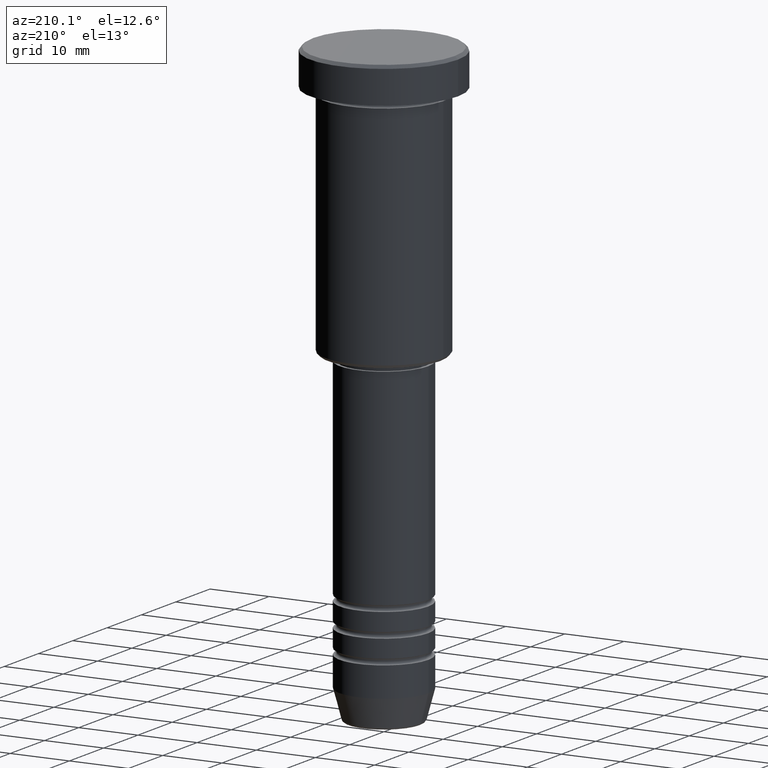
[diagram: clean part render]
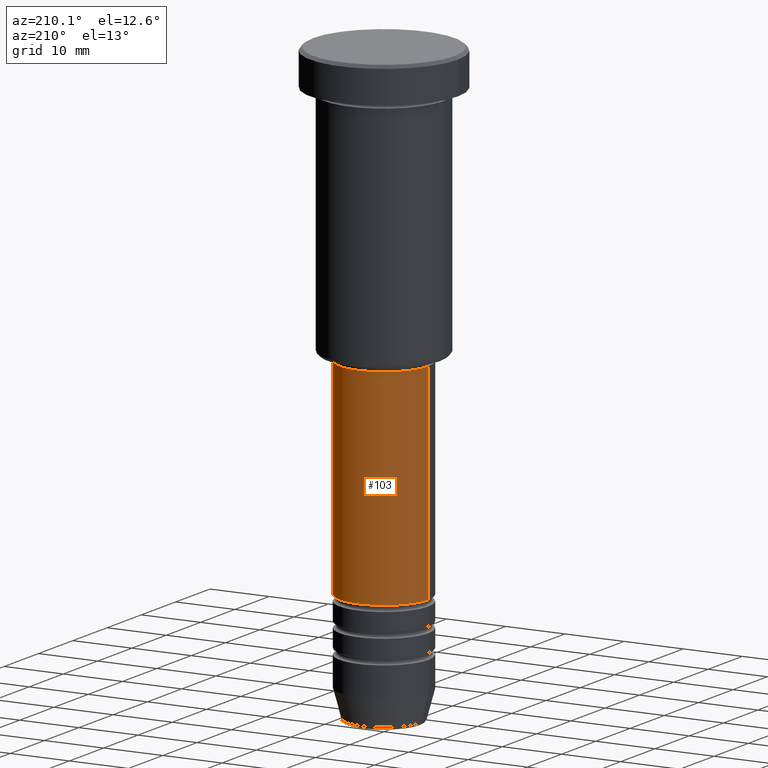
[diagram: same view with one face highlighted and labeled with its STEP entity id]
A machine part, auxiliary view. The second image highlights one B-rep face of the part: STEP entity #103.
In plain terms, the highlighted cylindrical surface (partial cylindrical patch) has radius 7.5 mm, axis along (-0, -0, 1).
Its self-contained STEP definition (entity closure, byte-faithful):
#19 = CARTESIAN_POINT ( 'NONE',  ( 7.500000000000000000, 0.000000000000000000, 0.000000000000000000 ) ) ;
#41 = DIRECTION ( 'NONE',  ( 1.000000000000000000, 0.000000000000000000, 0.000000000000000000 ) ) ;
#62 = ORIENTED_EDGE ( 'NONE', *, *, #490, .T. ) ;
#73 = ORIENTED_EDGE ( 'NONE', *, *, #237, .T. ) ;
#102 = VECTOR ( 'NONE', #1027, 1000.000000000000000 ) ;
#103 = ADVANCED_FACE ( 'NONE', ( #597 ), #229, .T. ) ;
#111 = DIRECTION ( 'NONE',  ( 1.000000000000000000, 0.000000000000000000, 0.000000000000000000 ) ) ;
#186 = EDGE_LOOP ( 'NONE', ( #62, #73, #764, #890 ) ) ;
#192 = EDGE_CURVE ( 'NONE', #1046, #510, #491, .T. ) ;
#227 = VECTOR ( 'NONE', #463, 1000.000000000000000 ) ;
#229 = CYLINDRICAL_SURFACE ( 'NONE', #943, 7.500000000000000000 ) ;
#237 = EDGE_CURVE ( 'NONE', #683, #510, #1130, .T. ) ;
#250 = AXIS2_PLACEMENT_3D ( 'NONE', #873, #414, #41 ) ;
#325 = DIRECTION ( 'NONE',  ( -0.000000000000000000, -0.000000000000000000, 1.000000000000000000 ) ) ;
#414 = DIRECTION ( 'NONE',  ( -0.000000000000000000, -0.000000000000000000, 1.000000000000000000 ) ) ;
#463 = DIRECTION ( 'NONE',  ( -0.000000000000000000, -0.000000000000000000, 1.000000000000000000 ) ) ;
#490 = EDGE_CURVE ( 'NONE', #775, #683, #567, .T. ) ;
#491 = CIRCLE ( 'NONE', #250, 7.500000000000000000 ) ;
#510 = VERTEX_POINT ( 'NONE', #1018 ) ;
#516 = AXIS2_PLACEMENT_3D ( 'NONE', #1028, #1111, #571 ) ;
#534 = EDGE_CURVE ( 'NONE', #775, #1046, #841, .T. ) ;
#567 = CIRCLE ( 'NONE', #516, 7.500000000000000888 ) ;
#571 = DIRECTION ( 'NONE',  ( 1.000000000000000000, 0.000000000000000000, 0.000000000000000000 ) ) ;
#597 = FACE_OUTER_BOUND ( 'NONE', #186, .T. ) ;
#683 = VERTEX_POINT ( 'NONE', #987 ) ;
#699 = CARTESIAN_POINT ( 'NONE',  ( -7.500000000000000000, 9.184850993605147944E-16, 0.000000000000000000 ) ) ;
#764 = ORIENTED_EDGE ( 'NONE', *, *, #192, .F. ) ;
#772 = CARTESIAN_POINT ( 'NONE',  ( 0.000000000000000000, 0.000000000000000000, 0.000000000000000000 ) ) ;
#775 = VERTEX_POINT ( 'NONE', #1125 ) ;
#841 = LINE ( 'NONE', #19, #227 ) ;
#873 = CARTESIAN_POINT ( 'NONE',  ( 0.000000000000000000, 0.000000000000000000, -46.99999999999997868 ) ) ;
#890 = ORIENTED_EDGE ( 'NONE', *, *, #534, .F. ) ;
#902 = CARTESIAN_POINT ( 'NONE',  ( 7.500000000000000000, 0.000000000000000000, -46.99999999999997868 ) ) ;
#943 = AXIS2_PLACEMENT_3D ( 'NONE', #772, #325, #111 ) ;
#987 = CARTESIAN_POINT ( 'NONE',  ( -7.500000000000001776, 9.184850993605149917E-16, -81.99999999999988631 ) ) ;
#1018 = CARTESIAN_POINT ( 'NONE',  ( -7.500000000000000000, 9.184850993605147944E-16, -46.99999999999997868 ) ) ;
#1027 = DIRECTION ( 'NONE',  ( -0.000000000000000000, -0.000000000000000000, 1.000000000000000000 ) ) ;
#1028 = CARTESIAN_POINT ( 'NONE',  ( 0.000000000000000000, 0.000000000000000000, -81.99999999999988631 ) ) ;
#1046 = VERTEX_POINT ( 'NONE', #902 ) ;
#1111 = DIRECTION ( 'NONE',  ( -0.000000000000000000, -0.000000000000000000, 1.000000000000000000 ) ) ;
#1125 = CARTESIAN_POINT ( 'NONE',  ( 7.500000000000000888, 0.000000000000000000, -81.99999999999988631 ) ) ;
#1130 = LINE ( 'NONE', #699, #102 ) ;